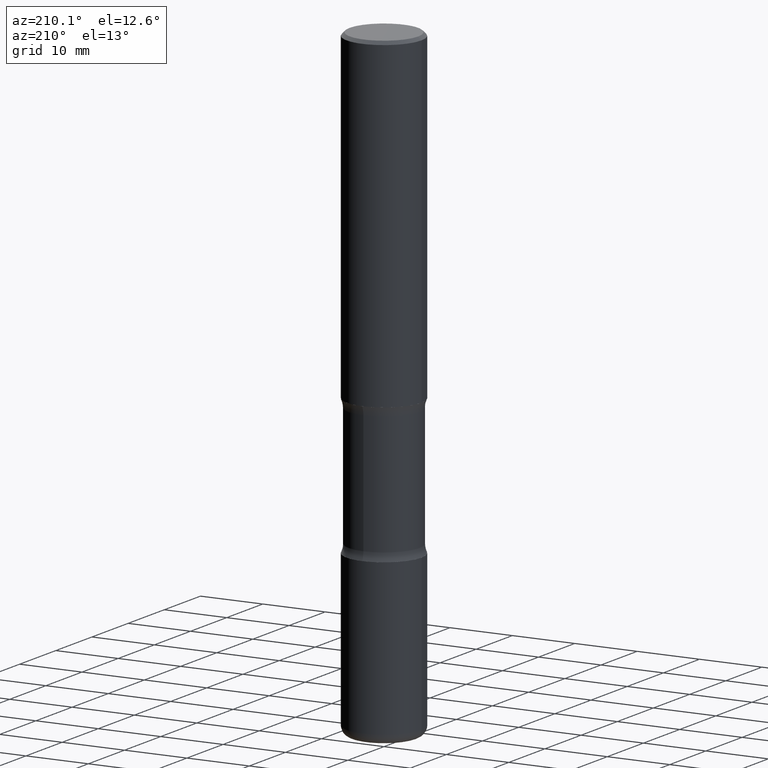
[diagram: clean part render]
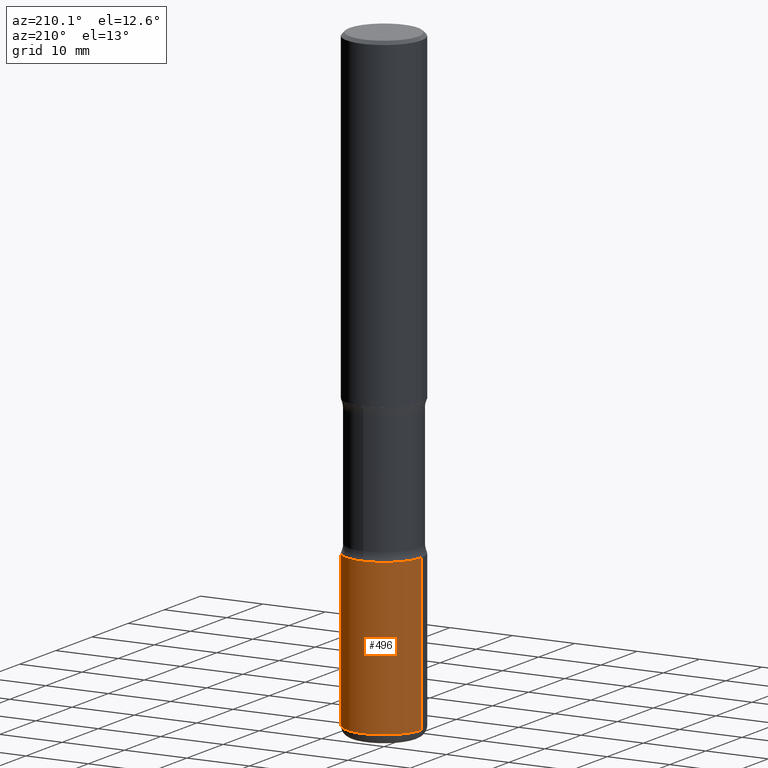
[diagram: same view with one face highlighted and labeled with its STEP entity id]
A machine part, auxiliary view. The second image highlights one B-rep face of the part: STEP entity #496.
In plain terms, the highlighted cylindrical surface (partial cylindrical patch) has radius 5.9995 mm, axis along (-0, 0, 1).
Its self-contained STEP definition (entity closure, byte-faithful):
#9 = DIRECTION ( 'NONE',  ( -2.445468806185136597E-29, 3.491481338843145583E-15, 1.000000000000000000 ) ) ;
#15 = VERTEX_POINT ( 'NONE', #552 ) ;
#26 = DIRECTION ( 'NONE',  ( -2.445468806185136597E-29, 3.491481338843145583E-15, 1.000000000000000000 ) ) ;
#36 = AXIS2_PLACEMENT_3D ( 'NONE', #208, #9, #305 ) ;
#59 = CARTESIAN_POINT ( 'NONE',  ( 0.000000000000000000, 0.000000000000000000, 0.000000000000000000 ) ) ;
#69 = EDGE_CURVE ( 'NONE', #269, #526, #76, .T. ) ;
#75 = AXIS2_PLACEMENT_3D ( 'NONE', #104, #26, #203 ) ;
#76 = LINE ( 'NONE', #545, #142 ) ;
#77 = CARTESIAN_POINT ( 'NONE',  ( 0.2362000000000001321, -1.182145751705511899E-14, -2.913400000000000212 ) ) ;
#92 = DIRECTION ( 'NONE',  ( 1.000000000000000000, -6.982962677686266711E-15, 4.876176775795936353E-29 ) ) ;
#96 = CYLINDRICAL_SURFACE ( 'NONE', #358, 0.2362000000000001598 ) ;
#98 = ORIENTED_EDGE ( 'NONE', *, *, #69, .T. ) ;
#104 = CARTESIAN_POINT ( 'NONE',  ( 7.124628819939777829E-29, -1.017208173258562247E-14, -2.913400000000000212 ) ) ;
#135 = FACE_OUTER_BOUND ( 'NONE', #413, .T. ) ;
#142 = VECTOR ( 'NONE', #505, 39.37007874015748143 ) ;
#143 = CARTESIAN_POINT ( 'NONE',  ( -0.2362000000000001321, -1.017754666637736977E-14, -2.913400000000000212 ) ) ;
#177 = LINE ( 'NONE', #346, #463 ) ;
#203 = DIRECTION ( 'NONE',  ( 1.000000000000000000, -6.982962677686269077E-15, 0.000000000000000000 ) ) ;
#208 = CARTESIAN_POINT ( 'NONE',  ( 9.483283483505337853E-29, -1.353961548389983144E-14, -3.877899999999999014 ) ) ;
#215 = CARTESIAN_POINT ( 'NONE',  ( -0.2362000000000000766, -1.186131354203447347E-14, -3.877899999999999014 ) ) ;
#269 = VERTEX_POINT ( 'NONE', #215 ) ;
#273 = EDGE_CURVE ( 'NONE', #15, #280, #177, .T. ) ;
#280 = VERTEX_POINT ( 'NONE', #77 ) ;
#286 = CIRCLE ( 'NONE', #36, 0.2362000000000002153 ) ;
#289 = ORIENTED_EDGE ( 'NONE', *, *, #447, .F. ) ;
#293 = EDGE_CURVE ( 'NONE', #15, #269, #286, .T. ) ;
#305 = DIRECTION ( 'NONE',  ( 1.000000000000000000, -6.982962677686266711E-15, 0.000000000000000000 ) ) ;
#346 = CARTESIAN_POINT ( 'NONE',  ( 0.2362000000000001598, -1.649375784469497314E-15, 1.151752954443000929E-29 ) ) ;
#358 = AXIS2_PLACEMENT_3D ( 'NONE', #59, #477, #92 ) ;
#413 = EDGE_LOOP ( 'NONE', ( #540, #98, #289, #523 ) ) ;
#447 = EDGE_CURVE ( 'NONE', #280, #526, #529, .T. ) ;
#463 = VECTOR ( 'NONE', #467, 39.37007874015748143 ) ;
#467 = DIRECTION ( 'NONE',  ( -2.445468806185136877E-29, 3.491481338843145188E-15, 1.000000000000000000 ) ) ;
#477 = DIRECTION ( 'NONE',  ( -2.445468806185136597E-29, 3.491481338843145583E-15, 1.000000000000000000 ) ) ;
#496 = ADVANCED_FACE ( 'NONE', ( #135 ), #96, .T. ) ;
#505 = DIRECTION ( 'NONE',  ( -2.445468806185136877E-29, 3.491481338843145188E-15, 1.000000000000000000 ) ) ;
#523 = ORIENTED_EDGE ( 'NONE', *, *, #273, .F. ) ;
#526 = VERTEX_POINT ( 'NONE', #143 ) ;
#529 = CIRCLE ( 'NONE', #75, 0.2362000000000001321 ) ;
#540 = ORIENTED_EDGE ( 'NONE', *, *, #293, .T. ) ;
#545 = CARTESIAN_POINT ( 'NONE',  ( -0.2362000000000001598, 1.678301941865357775E-15, -1.161852468318209598E-29 ) ) ;
#552 = CARTESIAN_POINT ( 'NONE',  ( 0.2362000000000000766, -1.518899126836932954E-14, -3.877899999999999014 ) ) ;